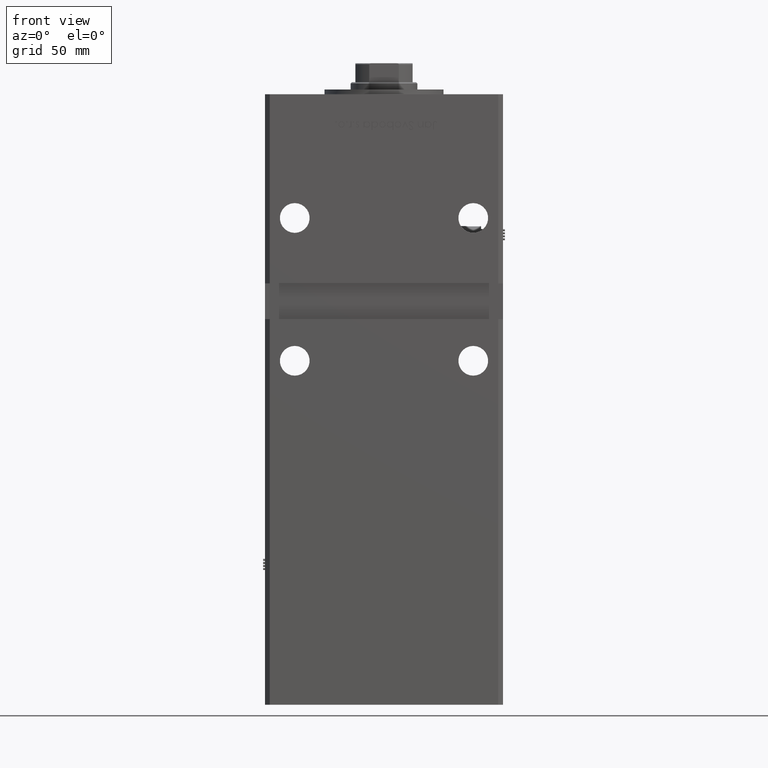
[diagram: clean part render]
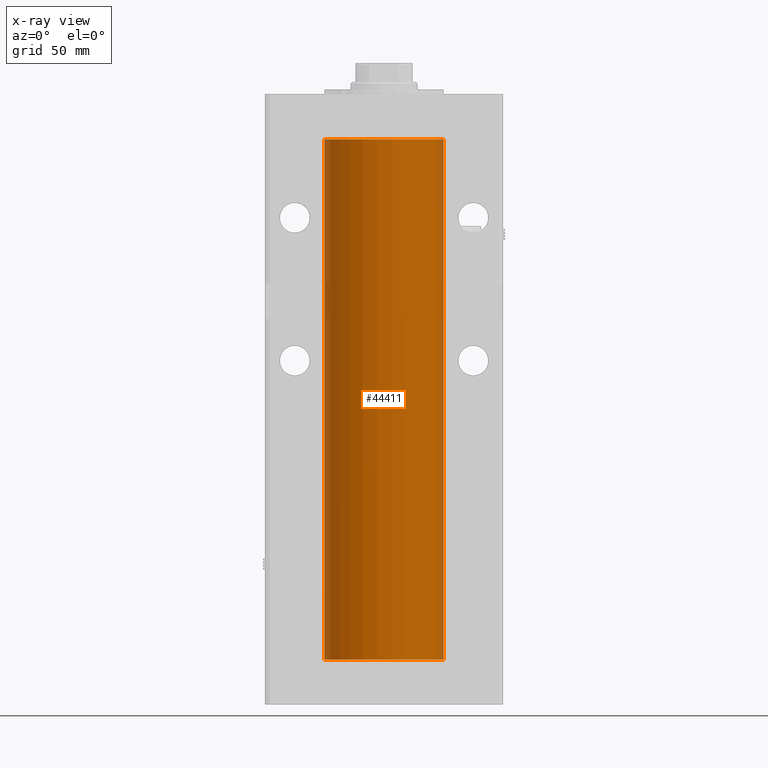
[diagram: x-ray — body ghosted, one internal face saturated and labeled with its STEP entity id]
A machine part, front view, then the same camera in x-ray: the body is ghosted and one INTERNAL B-rep face — a face not visible from any outside direction — is saturated and labeled: STEP entity #44411.
In plain terms, the highlighted cylindrical surface (partial cylindrical patch) has radius 25 mm, axis along (-0, -0, -1).
Its self-contained STEP definition (entity closure, byte-faithful):
#26 = CARTESIAN_POINT ( 'NONE',  ( 0.000000000000000000, 0.000000000000000000, 218.5000000000000000 ) ) ;
#595 = CIRCLE ( 'NONE', #1485, 25.00000000000000000 ) ;
#1485 = AXIS2_PLACEMENT_3D ( 'NONE', #26, #29895, #4296 ) ;
#1694 = DIRECTION ( 'NONE',  ( 1.000000000000000000, 0.000000000000000000, 0.000000000000000000 ) ) ;
#2474 = VECTOR ( 'NONE', #6679, 1000.000000000000000 ) ;
#4296 = DIRECTION ( 'NONE',  ( 1.000000000000000000, 0.000000000000000000, 0.000000000000000000 ) ) ;
#6679 = DIRECTION ( 'NONE',  ( -0.000000000000000000, -0.000000000000000000, -1.000000000000000000 ) ) ;
#9891 = VECTOR ( 'NONE', #53401, 1000.000000000000000 ) ;
#16802 = CARTESIAN_POINT ( 'NONE',  ( 25.00000000000000000, 3.061616997868383043E-15, 218.5000000000000000 ) ) ;
#16806 = EDGE_CURVE ( 'NONE', #34147, #17460, #27674, .T. ) ;
#16851 = DIRECTION ( 'NONE',  ( -1.000000000000000000, 0.000000000000000000, 0.000000000000000000 ) ) ;
#17460 = VERTEX_POINT ( 'NONE', #32833 ) ;
#18750 = CARTESIAN_POINT ( 'NONE',  ( 0.000000000000000000, 0.000000000000000000, 0.000000000000000000 ) ) ;
#20207 = CARTESIAN_POINT ( 'NONE',  ( -25.00000000000000000, 0.000000000000000000, 218.5000000000000000 ) ) ;
#20287 = DIRECTION ( 'NONE',  ( -0.000000000000000000, -0.000000000000000000, -1.000000000000000000 ) ) ;
#21126 = CARTESIAN_POINT ( 'NONE',  ( 0.000000000000000000, 0.000000000000000000, 218.5000000000000000 ) ) ;
#21863 = LINE ( 'NONE', #22969, #9891 ) ;
#22092 = ORIENTED_EDGE ( 'NONE', *, *, #52640, .T. ) ;
#22969 = CARTESIAN_POINT ( 'NONE',  ( 25.00000000000000000, 3.061616997868383043E-15, 218.5000000000000000 ) ) ;
#24175 = VERTEX_POINT ( 'NONE', #16802 ) ;
#24835 = CYLINDRICAL_SURFACE ( 'NONE', #50453, 25.00000000000000000 ) ;
#25123 = EDGE_LOOP ( 'NONE', ( #45911, #22092, #55609, #28885 ) ) ;
#27674 = CIRCLE ( 'NONE', #42246, 25.00000000000000000 ) ;
#27797 = VERTEX_POINT ( 'NONE', #20207 ) ;
#28287 = CARTESIAN_POINT ( 'NONE',  ( -25.00000000000000000, 0.000000000000000000, 218.5000000000000000 ) ) ;
#28885 = ORIENTED_EDGE ( 'NONE', *, *, #47707, .F. ) ;
#29895 = DIRECTION ( 'NONE',  ( -0.000000000000000000, 0.000000000000000000, 1.000000000000000000 ) ) ;
#32566 = LINE ( 'NONE', #28287, #2474 ) ;
#32833 = CARTESIAN_POINT ( 'NONE',  ( 25.00000000000000000, 3.061616997868383043E-15, 0.000000000000000000 ) ) ;
#34147 = VERTEX_POINT ( 'NONE', #39672 ) ;
#39672 = CARTESIAN_POINT ( 'NONE',  ( -25.00000000000000000, 0.000000000000000000, 0.000000000000000000 ) ) ;
#42246 = AXIS2_PLACEMENT_3D ( 'NONE', #18750, #49187, #1694 ) ;
#42748 = FACE_OUTER_BOUND ( 'NONE', #25123, .T. ) ;
#44411 = ADVANCED_FACE ( 'NONE', ( #42748 ), #24835, .F. ) ;
#45911 = ORIENTED_EDGE ( 'NONE', *, *, #46560, .T. ) ;
#46560 = EDGE_CURVE ( 'NONE', #27797, #24175, #595, .T. ) ;
#47707 = EDGE_CURVE ( 'NONE', #27797, #34147, #32566, .T. ) ;
#49187 = DIRECTION ( 'NONE',  ( -0.000000000000000000, 0.000000000000000000, 1.000000000000000000 ) ) ;
#50453 = AXIS2_PLACEMENT_3D ( 'NONE', #21126, #20287, #16851 ) ;
#52640 = EDGE_CURVE ( 'NONE', #24175, #17460, #21863, .T. ) ;
#53401 = DIRECTION ( 'NONE',  ( -0.000000000000000000, -0.000000000000000000, -1.000000000000000000 ) ) ;
#55609 = ORIENTED_EDGE ( 'NONE', *, *, #16806, .F. ) ;